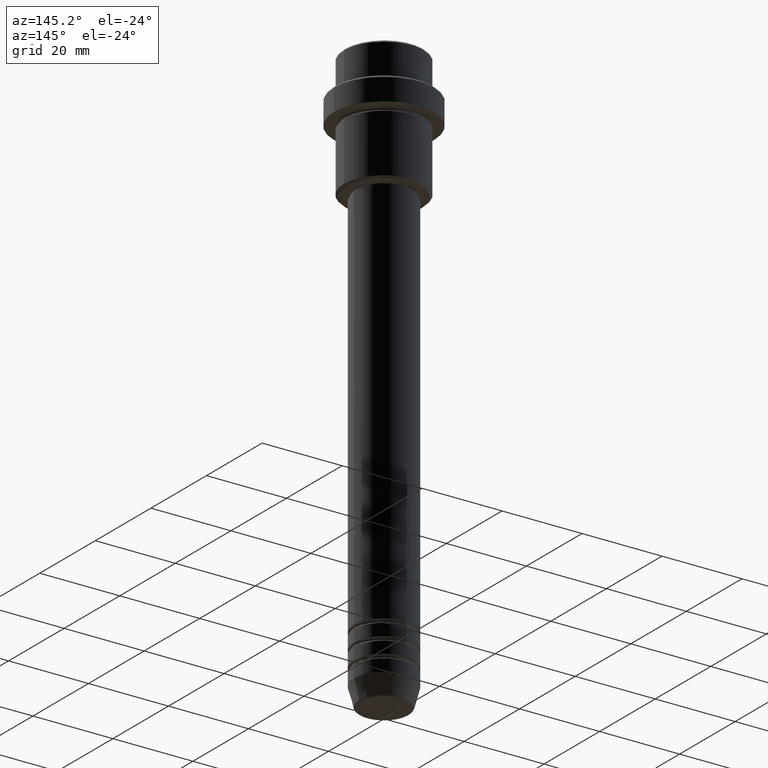
[diagram: clean part render]
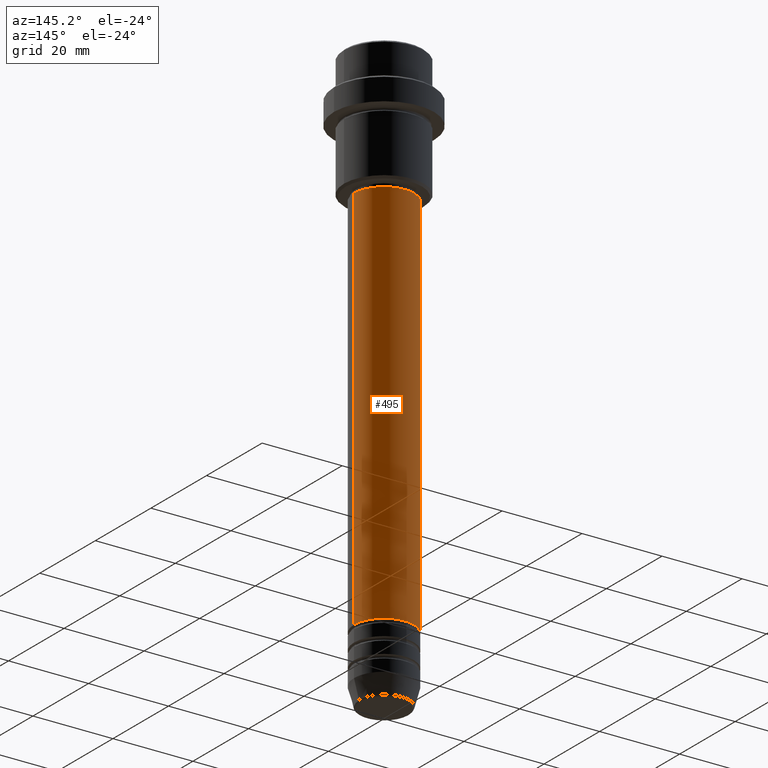
[diagram: same view with one face highlighted and labeled with its STEP entity id]
A machine part, auxiliary view. The second image highlights one B-rep face of the part: STEP entity #495.
In plain terms, the highlighted cylindrical surface (edge-blend (fillet) strip) has radius 7.5 mm, axis along (-0, -0, 1).
Its self-contained STEP definition (entity closure, byte-faithful):
#4 = DIRECTION ( 'NONE',  ( 1.000000000000000000, 0.000000000000000000, 0.000000000000000000 ) ) ;
#14 = CARTESIAN_POINT ( 'NONE',  ( -7.500000000000000000, 9.184850993605147944E-16, -31.99999999999999289 ) ) ;
#81 = CARTESIAN_POINT ( 'NONE',  ( 0.000000000000000000, 0.000000000000000000, 0.000000000000000000 ) ) ;
#95 = CARTESIAN_POINT ( 'NONE',  ( 7.500000000000000000, 0.000000000000000000, 0.000000000000000000 ) ) ;
#102 = AXIS2_PLACEMENT_3D ( 'NONE', #81, #514, #851 ) ;
#123 = AXIS2_PLACEMENT_3D ( 'NONE', #650, #223, #4 ) ;
#135 = ORIENTED_EDGE ( 'NONE', *, *, #526, .T. ) ;
#144 = CARTESIAN_POINT ( 'NONE',  ( -7.500000000000000000, 9.184850993605147944E-16, 0.000000000000000000 ) ) ;
#185 = LINE ( 'NONE', #95, #1045 ) ;
#219 = VERTEX_POINT ( 'NONE', #14 ) ;
#223 = DIRECTION ( 'NONE',  ( -0.000000000000000000, -0.000000000000000000, 1.000000000000000000 ) ) ;
#242 = CARTESIAN_POINT ( 'NONE',  ( 7.500000000000000000, 0.000000000000000000, -128.9999999999998579 ) ) ;
#275 = CIRCLE ( 'NONE', #710, 7.500000000000000000 ) ;
#286 = EDGE_LOOP ( 'NONE', ( #135, #1266, #960, #333 ) ) ;
#314 = DIRECTION ( 'NONE',  ( -0.000000000000000000, -0.000000000000000000, 1.000000000000000000 ) ) ;
#333 = ORIENTED_EDGE ( 'NONE', *, *, #1150, .F. ) ;
#411 = EDGE_CURVE ( 'NONE', #812, #219, #275, .T. ) ;
#495 = ADVANCED_FACE ( 'NONE', ( #728 ), #1076, .T. ) ;
#514 = DIRECTION ( 'NONE',  ( -0.000000000000000000, -0.000000000000000000, 1.000000000000000000 ) ) ;
#526 = EDGE_CURVE ( 'NONE', #547, #1382, #596, .T. ) ;
#530 = DIRECTION ( 'NONE',  ( 1.000000000000000000, 0.000000000000000000, 0.000000000000000000 ) ) ;
#547 = VERTEX_POINT ( 'NONE', #242 ) ;
#596 = CIRCLE ( 'NONE', #123, 7.500000000000000000 ) ;
#650 = CARTESIAN_POINT ( 'NONE',  ( 0.000000000000000000, 0.000000000000000000, -128.9999999999998579 ) ) ;
#683 = LINE ( 'NONE', #144, #1154 ) ;
#689 = EDGE_CURVE ( 'NONE', #1382, #219, #683, .T. ) ;
#710 = AXIS2_PLACEMENT_3D ( 'NONE', #858, #1183, #530 ) ;
#728 = FACE_OUTER_BOUND ( 'NONE', #286, .T. ) ;
#812 = VERTEX_POINT ( 'NONE', #1415 ) ;
#851 = DIRECTION ( 'NONE',  ( 1.000000000000000000, 0.000000000000000000, 0.000000000000000000 ) ) ;
#858 = CARTESIAN_POINT ( 'NONE',  ( 0.000000000000000000, 0.000000000000000000, -31.99999999999999289 ) ) ;
#877 = CARTESIAN_POINT ( 'NONE',  ( -7.500000000000000000, 9.184850993605147944E-16, -128.9999999999998579 ) ) ;
#960 = ORIENTED_EDGE ( 'NONE', *, *, #411, .F. ) ;
#1045 = VECTOR ( 'NONE', #314, 1000.000000000000000 ) ;
#1076 = CYLINDRICAL_SURFACE ( 'NONE', #102, 7.500000000000000000 ) ;
#1143 = DIRECTION ( 'NONE',  ( -0.000000000000000000, -0.000000000000000000, 1.000000000000000000 ) ) ;
#1150 = EDGE_CURVE ( 'NONE', #547, #812, #185, .T. ) ;
#1154 = VECTOR ( 'NONE', #1143, 1000.000000000000000 ) ;
#1183 = DIRECTION ( 'NONE',  ( -0.000000000000000000, -0.000000000000000000, 1.000000000000000000 ) ) ;
#1266 = ORIENTED_EDGE ( 'NONE', *, *, #689, .T. ) ;
#1382 = VERTEX_POINT ( 'NONE', #877 ) ;
#1415 = CARTESIAN_POINT ( 'NONE',  ( 7.500000000000000000, 0.000000000000000000, -31.99999999999999289 ) ) ;